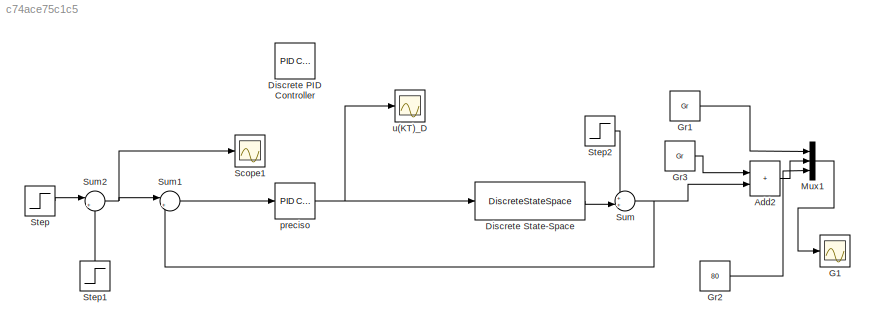
MODEL slx_c74ace75c1c5
KIND model
CONFIG AbsTol = auto
CONFIG EnableMultiTasking = off
CONFIG FixedStep = auto
CONFIG MaxStep = auto
CONFIG MinStep = auto
CONFIG RelTol = 1e-3
CONFIG SampleTimeConstraint = Unconstrained
CONFIG SolverName = VariableStepAuto
CONFIG StartTime = 0.0
CONFIG StopTime = 20000
BLOCK [Sum] Add2
  IconShape = rectangular
  Ports = [2, 1]
BLOCK [Reference] Discrete PID Controller  REF=pid_lib/PID Controller
  Ports = [1, 1]
  SourceBlock = pid_lib/PID Controller
  SourceProductBaseCode = SL
  SourceType = PID 1dof
BLOCK [DiscreteStateSpace] Discrete State-Space
  A = A_zoh
  B = B_zoh
  C = C_zoh
  D = 0
  InitialCondition = [130; 0; 0]
  SampleTime = -1
BLOCK [Scope] G1
  Floating = off
  NumInputPorts = 1
  Ports = [1]
  ScopeSpecificationString = Simulink.scopes.TimeScopeBlockCfg('CurrentConfiguration', extmgr.ConfigurationSet(extmgr.Configuration('Core','General UI',true,'FigureColor',[0 0 0]),extmgr.Configuration('Core','Source UI',true),extmgr.Configuration('Sources','WiredSimulink',true,'DataLoggingVariableName','ScopeData2'),extmgr.Configuration('Visuals','Time Domain',true,'SerializedDisplays',{struct('MinYLimReal','58.75','MaxYLimRe...<+1754ch>
BLOCK [Constant] Gr1
  Value = Gr
BLOCK [Constant] Gr2
  Value = 80
BLOCK [Constant] Gr3
  Value = Gr
BLOCK [Mux] Mux1
  DisplayOption = bar
  Inputs = 3
  Ports = [3, 1]
BLOCK [Scope] Scope1
  Floating = off
  NumInputPorts = 1
  Ports = [1]
  ScopeSpecificationString = Simulink.scopes.TimeScopeBlockCfg('CurrentConfiguration', extmgr.ConfigurationSet(extmgr.Configuration('Core','General UI',true),extmgr.Configuration('Core','Source UI',true),extmgr.Configuration('Sources','WiredSimulink',true,'DataLoggingVariableName','ScopeData1'),extmgr.Configuration('Visuals','Time Domain',true,'SerializedDisplays',{struct('MinYLimReal','-0.125','MaxYLimReal','1.125','YLabelRe...<+1500ch>
BLOCK [Step] Step
  SampleTime = 0
BLOCK [Step] Step1
  NameLocation = right
  SampleTime = 0
  Time = 300
BLOCK [Step] Step2
  After = 100
  SampleTime = 0
  Time = 5000
BLOCK [Sum] Sum
  Inputs = ++|
  Ports = [2, 1]
BLOCK [Sum] Sum1
  Inputs = |+-
  Ports = [2, 1]
BLOCK [Sum] Sum2
  Inputs = |+-
  Ports = [2, 1]
BLOCK [Reference] preciso  REF=pid_lib/PID Controller
  Ports = [1, 1]
  SourceBlock = pid_lib/PID Controller
  SourceProductBaseCode = SL
  SourceType = PID 1dof
BLOCK [Scope] u(KT)_D
  Floating = off
  NumInputPorts = 1
  Ports = [1]
  ScopeSpecificationString = Simulink.scopes.TimeScopeBlockCfg('CurrentConfiguration', extmgr.ConfigurationSet(extmgr.Configuration('Core','General UI',true,'FigureColor',[0 0 0]),extmgr.Configuration('Core','Source UI',true),extmgr.Configuration('Sources','WiredSimulink',true),extmgr.Configuration('Visuals','Time Domain',true,'SerializedDisplays',{struct('MinYLimReal','-0.00517','MaxYLimReal','0.01499','YLabelReal','','MinYL...<+1542ch>
LINE Add2:1 -> Mux1:2
LINE Discrete State-Space:1 -> Sum:2
LINE Gr1:1 -> Mux1:1
LINE Gr2:1 -> Mux1:3
LINE Gr3:1 -> Add2:1
LINE Mux1:1 -> G1:1
LINE Step1:1 -> Sum2:2
LINE Step2:1 -> Sum:1
LINE Step:1 -> Sum2:1
LINE Sum1:1 -> preciso:1
NET Sum2:1 -> Scope1:1, Sum1:1
NET Sum:1 -> Add2:2, Sum1:2
NET preciso:1 -> Discrete State-Space:1, u(KT)_D:1
note: NET lines group one-source signal fan-out (src -> all destinations, sorted); 1:1 wires keep LINE
